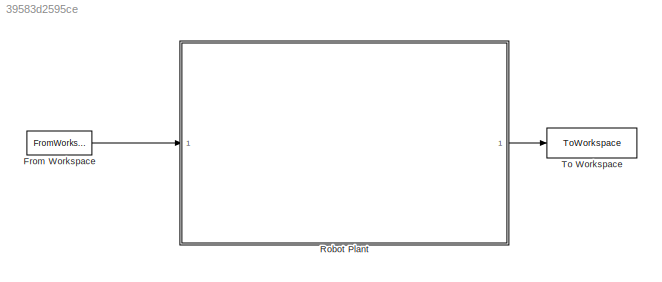
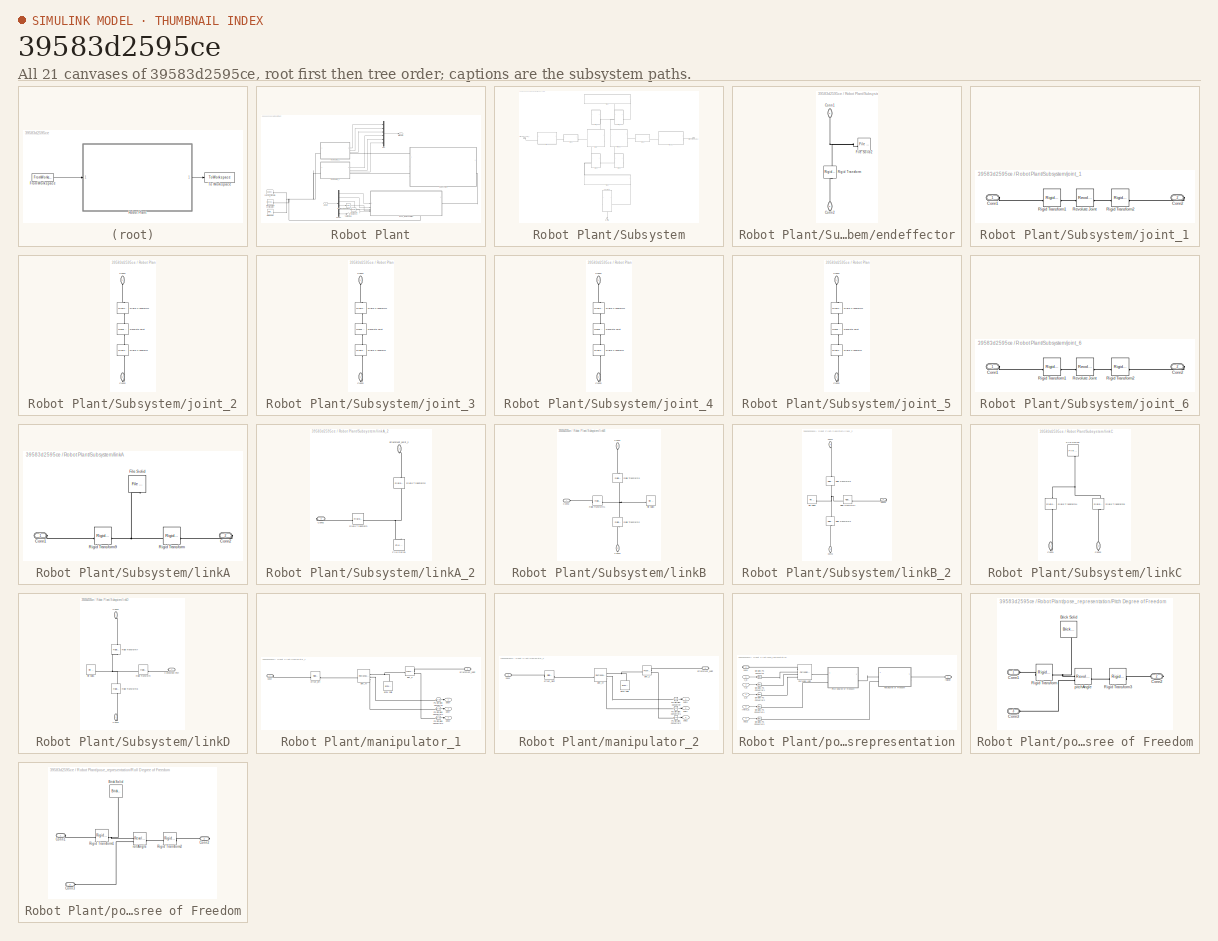
[diagram: thumbnail index - all 21 canvases of the model, root first then tree order]
MODEL slx_39583d2595ce
KIND model
CONFIG FixedStep = 1e-4
CONFIG SolverName = VariableStepAuto
CONFIG StopTime = 10
BLOCK [FromWorkspace] From Workspace
  VariableName = pose
BLOCK [SubSystem] Robot Plant
  TreatAsAtomicUnit = on
BLOCK [Reference] Robot Plant/Degrees to Radians  REF=simulink_extras/Transformations/Degrees to
Radians
  SourceBlock = simulink_extras/Transformations/Degrees to\nRadians
  SourceType = DegreesToRadians
BLOCK [Reference] Robot Plant/Degrees to Radians1  REF=simulink_extras/Transformations/Degrees to
Radians
  SourceBlock = simulink_extras/Transformations/Degrees to\nRadians
  SourceType = DegreesToRadians
BLOCK [Demux] Robot Plant/Demux
  Outputs = 6
BLOCK [Reference] Robot Plant/Mechanism Configuration  REF=sm_lib/Utilities/Mechanism
Configuration
  SourceBlock = sm_lib/Utilities/Mechanism\nConfiguration
  SourceType = Mechanism\nConfiguration
BLOCK [Mux] Robot Plant/Mux
  DisplayOption = bar
  Inputs = 6
BLOCK [Reference] Robot Plant/Solver Configuration  REF=nesl_utility/Solver
Configuration
  SourceBlock = nesl_utility/Solver\nConfiguration
  SourceType = Solver\nConfiguration
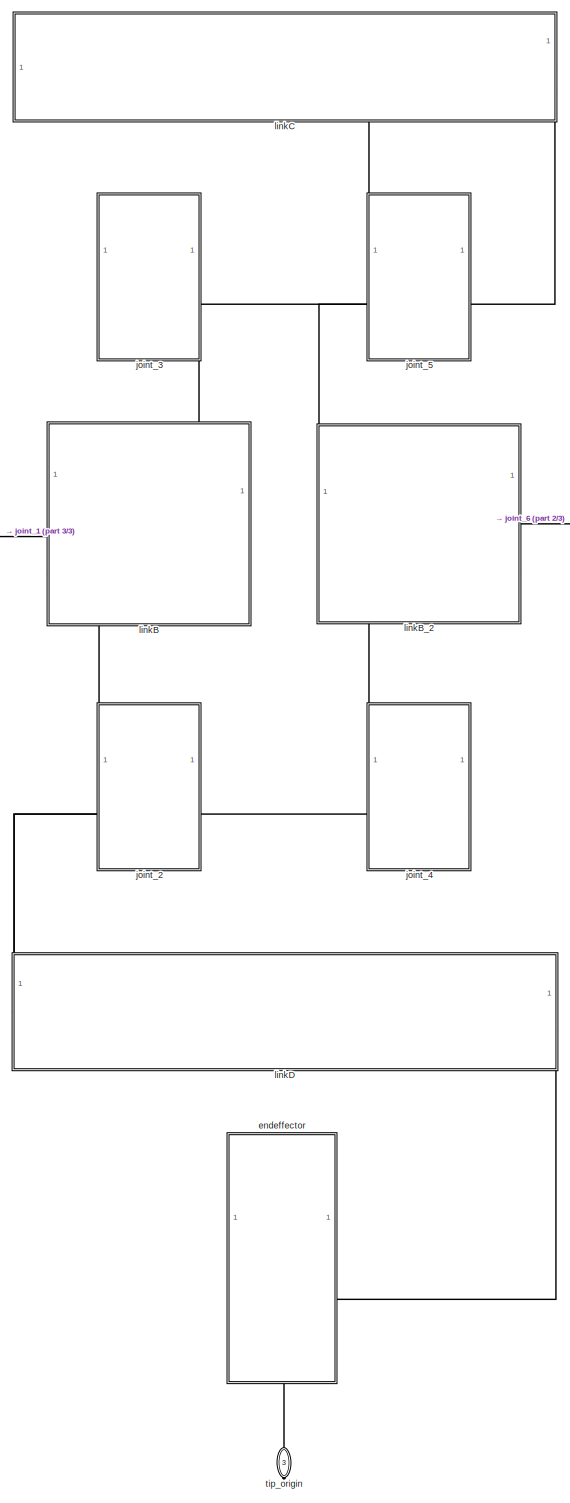
[diagram: Robot Plant/Subsystem - part 1/3, center side, full height]
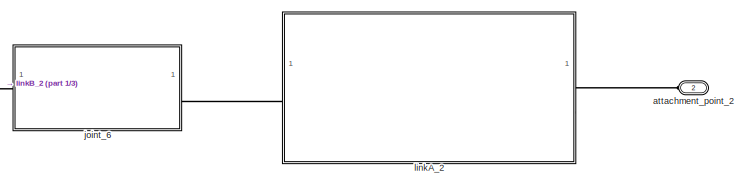
[diagram: Robot Plant/Subsystem - part 2/3, middle right region]
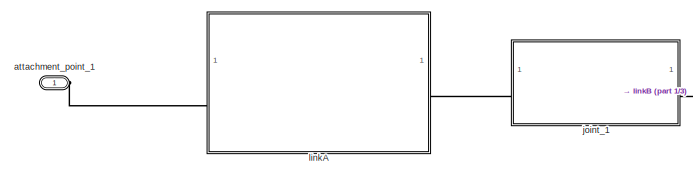
[diagram: Robot Plant/Subsystem - part 3/3, middle left region]
BLOCK [SubSystem] Robot Plant/Subsystem
BLOCK [PMIOPort] Robot Plant/Subsystem/attachment_point_1
  Side = Left
BLOCK [PMIOPort] Robot Plant/Subsystem/attachment_point_2
  NameLocation = top
  Port = 2
  Side = Left
BLOCK [SubSystem] Robot Plant/Subsystem/endeffector
  PortSchema = {"entries":[{"content":{"sides":[{"content":{},"type":"ConnectorPlacement.EquallySpacedRectSide","uuid":"9de1889a-d8f6-4996-99c5-f2a028d35b44"},{"content":{"side":"RIGHT"},"type":"ConnectorPlacement.EquallySpacedRectSide","uuid":"8a8edfff-e1e7-440d-adc1-4cea806c8845"},{"content":{"connectorIds":["LConn1"],"side":"TOP"},"type":"ConnectorPlacement.EquallySpacedRectSide","uuid":"a66a7a7d-93f6-41f0-b4...<+354ch>
BLOCK [PMIOPort] Robot Plant/Subsystem/endeffector/Conn1
  NameLocation = left
  Side = Left
BLOCK [PMIOPort] Robot Plant/Subsystem/endeffector/Conn2
  NameLocation = left
  Port = 2
  Side = Right
BLOCK [Reference] Robot Plant/Subsystem/endeffector/File Solid2  REF=sm_lib/Body Elements/File Solid
  SourceBlock = sm_lib/Body Elements/File Solid
  SourceType = File Solid
BLOCK [Reference] Robot Plant/Subsystem/endeffector/Rigid Transform  REF=sm_lib/Frames and
Transforms/Rigid
Transform
  NameLocation = left
  SourceBlock = sm_lib/Frames and\nTransforms/Rigid\nTransform
  SourceType = Rigid\nTransform
BLOCK [SubSystem] Robot Plant/Subsystem/joint_1
BLOCK [PMIOPort] Robot Plant/Subsystem/joint_1/Conn1
  Side = Left
BLOCK [PMIOPort] Robot Plant/Subsystem/joint_1/Conn2
  Port = 2
  Side = Right
BLOCK [Reference] Robot Plant/Subsystem/joint_1/Revolute Joint  REF=sm_lib/Joints/Revolute Joint
  SourceBlock = sm_lib/Joints/Revolute Joint
  SourceType = Revolute Joint
BLOCK [Reference] Robot Plant/Subsystem/joint_1/Rigid Transform1  REF=sm_lib/Frames and
Transforms/Rigid
Transform
  SourceBlock = sm_lib/Frames and\nTransforms/Rigid\nTransform
  SourceType = Rigid\nTransform
BLOCK [Reference] Robot Plant/Subsystem/joint_1/Rigid Transform2  REF=sm_lib/Frames and
Transforms/Rigid
Transform
  SourceBlock = sm_lib/Frames and\nTransforms/Rigid\nTransform
  SourceType = Rigid\nTransform
BLOCK [SubSystem] Robot Plant/Subsystem/joint_2
  PortSchema = {"entries":[{"content":{"sides":[{"content":{},"type":"ConnectorPlacement.EquallySpacedRectSide","uuid":"7ac89617-0827-49a6-bc82-c9854bd87ba2"},{"content":{"side":"RIGHT"},"type":"ConnectorPlacement.EquallySpacedRectSide","uuid":"8abbba95-1fa4-4603-b9f3-69c7a5fa3e8e"},{"content":{"connectorIds":["LConn1"],"side":"TOP"},"type":"ConnectorPlacement.EquallySpacedRectSide","uuid":"f375a471-7789-4821-97...<+354ch>  <repeated x4 — deduplicated; at blocks: joint_2, joint_3, joint_4, joint_5>
BLOCK [PMIOPort] Robot Plant/Subsystem/joint_2/Conn1
  NameLocation = left
  Side = Left
BLOCK [PMIOPort] Robot Plant/Subsystem/joint_2/Conn2
  NameLocation = right
  Port = 2
  Side = Right
BLOCK [Reference] Robot Plant/Subsystem/joint_2/Revolute Joint  REF=sm_lib/Joints/Revolute Joint
  NameLocation = right
  SourceBlock = sm_lib/Joints/Revolute Joint
  SourceType = Revolute Joint
BLOCK [Reference] Robot Plant/Subsystem/joint_2/Rigid Transform  REF=sm_lib/Frames and
Transforms/Rigid
Transform
  NameLocation = right
  SourceBlock = sm_lib/Frames and\nTransforms/Rigid\nTransform
  SourceType = Rigid\nTransform
BLOCK [Reference] Robot Plant/Subsystem/joint_2/Rigid Transform1  REF=sm_lib/Frames and
Transforms/Rigid
Transform
  NameLocation = left
  SourceBlock = sm_lib/Frames and\nTransforms/Rigid\nTransform
  SourceType = Rigid\nTransform
BLOCK [SubSystem] Robot Plant/Subsystem/joint_3
BLOCK [PMIOPort] Robot Plant/Subsystem/joint_3/Conn1
  NameLocation = left
  Side = Left
BLOCK [PMIOPort] Robot Plant/Subsystem/joint_3/Conn2
  NameLocation = right
  Port = 2
  Side = Right
BLOCK [Reference] Robot Plant/Subsystem/joint_3/Revolute Joint  REF=sm_lib/Joints/Revolute Joint
  NameLocation = right
  SourceBlock = sm_lib/Joints/Revolute Joint
  SourceType = Revolute Joint
BLOCK [Reference] Robot Plant/Subsystem/joint_3/Rigid Transform  REF=sm_lib/Frames and
Transforms/Rigid
Transform
  NameLocation = right
  SourceBlock = sm_lib/Frames and\nTransforms/Rigid\nTransform
  SourceType = Rigid\nTransform
BLOCK [Reference] Robot Plant/Subsystem/joint_3/Rigid Transform1  REF=sm_lib/Frames and
Transforms/Rigid
Transform
  NameLocation = left
  SourceBlock = sm_lib/Frames and\nTransforms/Rigid\nTransform
  SourceType = Rigid\nTransform
BLOCK [SubSystem] Robot Plant/Subsystem/joint_4
BLOCK [PMIOPort] Robot Plant/Subsystem/joint_4/Conn1
  NameLocation = left
  Side = Left
BLOCK [PMIOPort] Robot Plant/Subsystem/joint_4/Conn2
  NameLocation = right
  Port = 2
  Side = Right
BLOCK [Reference] Robot Plant/Subsystem/joint_4/Revolute Joint  REF=sm_lib/Joints/Revolute Joint
  NameLocation = right
  SourceBlock = sm_lib/Joints/Revolute Joint
  SourceType = Revolute Joint
BLOCK [Reference] Robot Plant/Subsystem/joint_4/Rigid Transform  REF=sm_lib/Frames and
Transforms/Rigid
Transform
  NameLocation = right
  SourceBlock = sm_lib/Frames and\nTransforms/Rigid\nTransform
  SourceType = Rigid\nTransform
BLOCK [Reference] Robot Plant/Subsystem/joint_4/Rigid Transform1  REF=sm_lib/Frames and
Transforms/Rigid
Transform
  NameLocation = left
  SourceBlock = sm_lib/Frames and\nTransforms/Rigid\nTransform
  SourceType = Rigid\nTransform
BLOCK [SubSystem] Robot Plant/Subsystem/joint_5
BLOCK [PMIOPort] Robot Plant/Subsystem/joint_5/Conn1
  NameLocation = left
  Side = Left
BLOCK [PMIOPort] Robot Plant/Subsystem/joint_5/Conn2
  NameLocation = right
  Port = 2
  Side = Right
BLOCK [Reference] Robot Plant/Subsystem/joint_5/Revolute Joint  REF=sm_lib/Joints/Revolute Joint
  NameLocation = right
  SourceBlock = sm_lib/Joints/Revolute Joint
  SourceType = Revolute Joint
BLOCK [Reference] Robot Plant/Subsystem/joint_5/Rigid Transform  REF=sm_lib/Frames and
Transforms/Rigid
Transform
  NameLocation = right
  SourceBlock = sm_lib/Frames and\nTransforms/Rigid\nTransform
  SourceType = Rigid\nTransform
BLOCK [Reference] Robot Plant/Subsystem/joint_5/Rigid Transform1  REF=sm_lib/Frames and
Transforms/Rigid
Transform
  NameLocation = left
  SourceBlock = sm_lib/Frames and\nTransforms/Rigid\nTransform
  SourceType = Rigid\nTransform
BLOCK [SubSystem] Robot Plant/Subsystem/joint_6
BLOCK [PMIOPort] Robot Plant/Subsystem/joint_6/Conn1
  Side = Left
BLOCK [PMIOPort] Robot Plant/Subsystem/joint_6/Conn2
  Port = 2
  Side = Right
BLOCK [Reference] Robot Plant/Subsystem/joint_6/Revolute Joint  REF=sm_lib/Joints/Revolute Joint
  SourceBlock = sm_lib/Joints/Revolute Joint
  SourceType = Revolute Joint
BLOCK [Reference] Robot Plant/Subsystem/joint_6/Rigid Transform1  REF=sm_lib/Frames and
Transforms/Rigid
Transform
  SourceBlock = sm_lib/Frames and\nTransforms/Rigid\nTransform
  SourceType = Rigid\nTransform
BLOCK [Reference] Robot Plant/Subsystem/joint_6/Rigid Transform2  REF=sm_lib/Frames and
Transforms/Rigid
Transform
  SourceBlock = sm_lib/Frames and\nTransforms/Rigid\nTransform
  SourceType = Rigid\nTransform
BLOCK [SubSystem] Robot Plant/Subsystem/linkA
BLOCK [PMIOPort] Robot Plant/Subsystem/linkA/Conn1
  Side = Left
BLOCK [PMIOPort] Robot Plant/Subsystem/linkA/Conn2
  Port = 2
  Side = Right
BLOCK [Reference] Robot Plant/Subsystem/linkA/File Solid  REF=sm_lib/Body Elements/File Solid
  NameLocation = right
  SourceBlock = sm_lib/Body Elements/File Solid
  SourceType = File Solid
BLOCK [Reference] Robot Plant/Subsystem/linkA/Rigid Transform  REF=sm_lib/Frames and
Transforms/Rigid
Transform
  SourceBlock = sm_lib/Frames and\nTransforms/Rigid\nTransform
  SourceType = Rigid\nTransform
BLOCK [Reference] Robot Plant/Subsystem/linkA/Rigid Transform9  REF=sm_lib/Frames and
Transforms/Rigid
Transform
  SourceBlock = sm_lib/Frames and\nTransforms/Rigid\nTransform
  SourceType = Rigid\nTransform
BLOCK [SubSystem] Robot Plant/Subsystem/linkA_2
BLOCK [PMIOPort] Robot Plant/Subsystem/linkA_2/Conn2
  Port = 2
  Side = Right
BLOCK [Reference] Robot Plant/Subsystem/linkA_2/File Solid1  REF=sm_lib/Body Elements/File Solid
  NameLocation = left
  SourceBlock = sm_lib/Body Elements/File Solid
  SourceType = File Solid
BLOCK [Reference] Robot Plant/Subsystem/linkA_2/Rigid Transform  REF=sm_lib/Frames and
Transforms/Rigid
Transform
  NameLocation = top
  SourceBlock = sm_lib/Frames and\nTransforms/Rigid\nTransform
  SourceType = Rigid\nTransform
BLOCK [Reference] Robot Plant/Subsystem/linkA_2/Rigid Transform2  REF=sm_lib/Frames and
Transforms/Rigid
Transform
  NameLocation = left
  SourceBlock = sm_lib/Frames and\nTransforms/Rigid\nTransform
  SourceType = Rigid\nTransform
BLOCK [PMIOPort] Robot Plant/Subsystem/linkA_2/attachment_point_2
  NameLocation = left
  Side = Left
BLOCK [SubSystem] Robot Plant/Subsystem/linkB
  PortSchema = {"entries":[{"content":{"sides":[{"content":{"connectorIds":["LConn1"]},"type":"ConnectorPlacement.EquallySpacedRectSide","uuid":"ad560010-601c-4109-ad9b-c40875ad22ec"},{"content":{"side":"RIGHT"},"type":"ConnectorPlacement.EquallySpacedRectSide","uuid":"380dc67c-db39-4e97-b8ce-8039eefb717d"},{"content":{"connectorIds":["LConn2"],"side":"TOP"},"type":"ConnectorPlacement.EquallySpacedRectSide","uui...<+379ch>
BLOCK [PMIOPort] Robot Plant/Subsystem/linkB/Conn1
  NameLocation = right
  Port = 2
  Side = Left
BLOCK [PMIOPort] Robot Plant/Subsystem/linkB/Conn2
  Side = Left
BLOCK [PMIOPort] Robot Plant/Subsystem/linkB/Conn3
  NameLocation = left
  Port = 3
  Side = Right
BLOCK [Reference] Robot Plant/Subsystem/linkB/File Solid3  REF=sm_lib/Body Elements/File Solid
  SourceBlock = sm_lib/Body Elements/File Solid
  SourceType = File Solid
BLOCK [Reference] Robot Plant/Subsystem/linkB/Rigid Transform1  REF=sm_lib/Frames and
Transforms/Rigid
Transform
  SourceBlock = sm_lib/Frames and\nTransforms/Rigid\nTransform
  SourceType = Rigid\nTransform
BLOCK [Reference] Robot Plant/Subsystem/linkB/Rigid Transform2  REF=sm_lib/Frames and
Transforms/Rigid
Transform
  NameLocation = left
  SourceBlock = sm_lib/Frames and\nTransforms/Rigid\nTransform
  SourceType = Rigid\nTransform
BLOCK [Reference] Robot Plant/Subsystem/linkB/Rigid Transform3  REF=sm_lib/Frames and
Transforms/Rigid
Transform
  NameLocation = right
  SourceBlock = sm_lib/Frames and\nTransforms/Rigid\nTransform
  SourceType = Rigid\nTransform
BLOCK [SubSystem] Robot Plant/Subsystem/linkB_2
  PortSchema = {"entries":[{"content":{"sides":[{"content":{},"type":"ConnectorPlacement.EquallySpacedRectSide","uuid":"7330d8d3-43dc-4fcf-bec4-ef645772f38d"},{"content":{"connectorIds":["RConn1"],"side":"RIGHT"},"type":"ConnectorPlacement.EquallySpacedRectSide","uuid":"b5105267-17e8-4fe9-8d2f-f82aac91dbeb"},{"content":{"connectorIds":["LConn1"],"side":"TOP"},"type":"ConnectorPlacement.EquallySpacedRectSide","uu...<+380ch>
BLOCK [PMIOPort] Robot Plant/Subsystem/linkB_2/Conn1
  NameLocation = right
  Side = Left
BLOCK [PMIOPort] Robot Plant/Subsystem/linkB_2/Conn2
  Port = 2
  Side = Right
BLOCK [PMIOPort] Robot Plant/Subsystem/linkB_2/Conn3
  NameLocation = right
  Port = 3
  Side = Right
BLOCK [Reference] Robot Plant/Subsystem/linkB_2/File Solid5  REF=sm_lib/Body Elements/File Solid
  SourceBlock = sm_lib/Body Elements/File Solid
  SourceType = File Solid
BLOCK [Reference] Robot Plant/Subsystem/linkB_2/Rigid Transform1  REF=sm_lib/Frames and
Transforms/Rigid
Transform
  SourceBlock = sm_lib/Frames and\nTransforms/Rigid\nTransform
  SourceType = Rigid\nTransform
BLOCK [Reference] Robot Plant/Subsystem/linkB_2/Rigid Transform3  REF=sm_lib/Frames and
Transforms/Rigid
Transform
  NameLocation = left
  SourceBlock = sm_lib/Frames and\nTransforms/Rigid\nTransform
  SourceType = Rigid\nTransform
BLOCK [Reference] Robot Plant/Subsystem/linkB_2/Rigid Transform6  REF=sm_lib/Frames and
Transforms/Rigid
Transform
  NameLocation = right
  SourceBlock = sm_lib/Frames and\nTransforms/Rigid\nTransform
  SourceType = Rigid\nTransform
BLOCK [SubSystem] Robot Plant/Subsystem/linkC
  PortSchema = {"entries":[{"content":{"sides":[{"content":{},"type":"ConnectorPlacement.EquallySpacedRectSide","uuid":"3cd58c2b-c1e3-4fb3-a9dc-0406e59c1568"},{"content":{"side":"RIGHT"},"type":"ConnectorPlacement.EquallySpacedRectSide","uuid":"fc2602cc-2a91-4563-8ad4-e1fc413fcd0e"},{"content":{"side":"TOP"},"type":"ConnectorPlacement.EquallySpacedRectSide","uuid":"e1f0a915-81c5-4962-997e-076b0eee3b1a"},{"conten...<+337ch>
BLOCK [PMIOPort] Robot Plant/Subsystem/linkC/Conn1
  NameLocation = left
  Side = Right
BLOCK [PMIOPort] Robot Plant/Subsystem/linkC/Conn2
  NameLocation = left
  Port = 2
  Side = Right
BLOCK [Reference] Robot Plant/Subsystem/linkC/File Solid4  REF=sm_lib/Body Elements/File Solid
  NameLocation = right
  SourceBlock = sm_lib/Body Elements/File Solid
  SourceType = File Solid
BLOCK [Reference] Robot Plant/Subsystem/linkC/Rigid Transform4  REF=sm_lib/Frames and
Transforms/Rigid
Transform
  NameLocation = right
  SourceBlock = sm_lib/Frames and\nTransforms/Rigid\nTransform
  SourceType = Rigid\nTransform
BLOCK [Reference] Robot Plant/Subsystem/linkC/Rigid Transform5  REF=sm_lib/Frames and
Transforms/Rigid
Transform
  NameLocation = left
  SourceBlock = sm_lib/Frames and\nTransforms/Rigid\nTransform
  SourceType = Rigid\nTransform
BLOCK [SubSystem] Robot Plant/Subsystem/linkD
  PortSchema = {"entries":[{"content":{"sides":[{"content":{},"type":"ConnectorPlacement.EquallySpacedRectSide","uuid":"3cd58c2b-c1e3-4fb3-a9dc-0406e59c1568"},{"content":{"side":"RIGHT"},"type":"ConnectorPlacement.EquallySpacedRectSide","uuid":"fc2602cc-2a91-4563-8ad4-e1fc413fcd0e"},{"content":{"connectorIds":["LConn1","LConn2"],"side":"TOP"},"type":"ConnectorPlacement.EquallySpacedRectSide","uuid":"e1f0a915-81c...<+363ch>
BLOCK [PMIOPort] Robot Plant/Subsystem/linkD/Conn1
  NameLocation = right
  Side = Left
BLOCK [PMIOPort] Robot Plant/Subsystem/linkD/Conn2
  NameLocation = left
  Port = 3
  Side = Right
BLOCK [PMIOPort] Robot Plant/Subsystem/linkD/Connection Port
  Port = 2
  Side = Left
BLOCK [Reference] Robot Plant/Subsystem/linkD/File Solid6  REF=sm_lib/Body Elements/File Solid
  SourceBlock = sm_lib/Body Elements/File Solid
  SourceType = File Solid
BLOCK [Reference] Robot Plant/Subsystem/linkD/Rigid Transform  REF=sm_lib/Frames and
Transforms/Rigid
Transform
  SourceBlock = sm_lib/Frames and\nTransforms/Rigid\nTransform
  SourceType = Rigid\nTransform
BLOCK [Reference] Robot Plant/Subsystem/linkD/Rigid Transform7  REF=sm_lib/Frames and
Transforms/Rigid
Transform
  NameLocation = left
  SourceBlock = sm_lib/Frames and\nTransforms/Rigid\nTransform
  SourceType = Rigid\nTransform
BLOCK [Reference] Robot Plant/Subsystem/linkD/Rigid Transform8  REF=sm_lib/Frames and
Transforms/Rigid
Transform
  NameLocation = left
  SourceBlock = sm_lib/Frames and\nTransforms/Rigid\nTransform
  SourceType = Rigid\nTransform
BLOCK [PMIOPort] Robot Plant/Subsystem/tip_origin
  NameLocation = right
  Port = 3
  Side = Right
BLOCK [Terminator] Robot Plant/Terminator1
BLOCK [Reference] Robot Plant/World Frame  REF=sm_lib/Frames and
Transforms/World Frame
  SourceBlock = sm_lib/Frames and\nTransforms/World Frame
  SourceType = World Frame
BLOCK [SubSystem] Robot Plant/manipulator_1
BLOCK [Reference] Robot Plant/manipulator_1/Brick Solid  REF=sm_lib/Body Elements/Brick Solid
  NameLocation = right
  SourceBlock = sm_lib/Body Elements/Brick Solid
  SourceType = Brick Solid
BLOCK [Reference] Robot Plant/manipulator_1/PS-Simulink Converter  REF=nesl_utility/PS-Simulink
Converter
  SourceBlock = nesl_utility/PS-Simulink\nConverter
  SourceType = PS-Simulink\nConverter
BLOCK [Reference] Robot Plant/manipulator_1/PS-Simulink Converter1  REF=nesl_utility/PS-Simulink
Converter
  SourceBlock = nesl_utility/PS-Simulink\nConverter
  SourceType = PS-Simulink\nConverter
BLOCK [Reference] Robot Plant/manipulator_1/PS-Simulink Converter2  REF=nesl_utility/PS-Simulink
Converter
  SourceBlock = nesl_utility/PS-Simulink\nConverter
  SourceType = PS-Simulink\nConverter
BLOCK [PMIOPort] Robot Plant/manipulator_1/attachment_point
  Port = 2
  Side = Right
BLOCK [Outport] Robot Plant/manipulator_1/axisX
BLOCK [Outport] Robot Plant/manipulator_1/axisY
  Port = 2
BLOCK [Outport] Robot Plant/manipulator_1/axisZ
  Port = 3
BLOCK [PMIOPort] Robot Plant/manipulator_1/base
  Side = Left
BLOCK [Reference] Robot Plant/manipulator_1/joint_XY  REF=sm_lib/Joints/Rectangular
Joint
  SourceBlock = sm_lib/Joints/Rectangular\nJoint
  SourceType = Rectangular\nJoint
BLOCK [Reference] Robot Plant/manipulator_1/joint_Z  REF=sm_lib/Joints/Prismatic
Joint
  SourceBlock = sm_lib/Joints/Prismatic\nJoint
  SourceType = Prismatic\nJoint
BLOCK [Reference] Robot Plant/manipulator_1/offset_left  REF=sm_lib/Frames and
Transforms/Rigid
Transform
  SourceBlock = sm_lib/Frames and\nTransforms/Rigid\nTransform
  SourceType = Rigid\nTransform
BLOCK [SubSystem] Robot Plant/manipulator_2
BLOCK [Reference] Robot Plant/manipulator_2/Brick Solid  REF=sm_lib/Body Elements/Brick Solid
  NameLocation = right
  SourceBlock = sm_lib/Body Elements/Brick Solid
  SourceType = Brick Solid
BLOCK [Reference] Robot Plant/manipulator_2/PS-Simulink Converter  REF=nesl_utility/PS-Simulink
Converter
  SourceBlock = nesl_utility/PS-Simulink\nConverter
  SourceType = PS-Simulink\nConverter
BLOCK [Reference] Robot Plant/manipulator_2/PS-Simulink Converter1  REF=nesl_utility/PS-Simulink
Converter
  SourceBlock = nesl_utility/PS-Simulink\nConverter
  SourceType = PS-Simulink\nConverter
BLOCK [Reference] Robot Plant/manipulator_2/PS-Simulink Converter2  REF=nesl_utility/PS-Simulink
Converter
  SourceBlock = nesl_utility/PS-Simulink\nConverter
  SourceType = PS-Simulink\nConverter
BLOCK [PMIOPort] Robot Plant/manipulator_2/attachment_point
  Port = 2
  Side = Right
BLOCK [Outport] Robot Plant/manipulator_2/axisX
BLOCK [Outport] Robot Plant/manipulator_2/axisY
  Port = 2
BLOCK [Outport] Robot Plant/manipulator_2/axisZ
  Port = 3
BLOCK [PMIOPort] Robot Plant/manipulator_2/base
  Side = Left
BLOCK [Reference] Robot Plant/manipulator_2/joint_XY  REF=sm_lib/Joints/Rectangular
Joint
  SourceBlock = sm_lib/Joints/Rectangular\nJoint
  SourceType = Rectangular\nJoint
BLOCK [Reference] Robot Plant/manipulator_2/joint_Z  REF=sm_lib/Joints/Prismatic
Joint
  SourceBlock = sm_lib/Joints/Prismatic\nJoint
  SourceType = Prismatic\nJoint
BLOCK [Reference] Robot Plant/manipulator_2/offset_right  REF=sm_lib/Frames and
Transforms/Rigid
Transform
  SourceBlock = sm_lib/Frames and\nTransforms/Rigid\nTransform
  SourceType = Rigid\nTransform
BLOCK [Inport] Robot Plant/pose
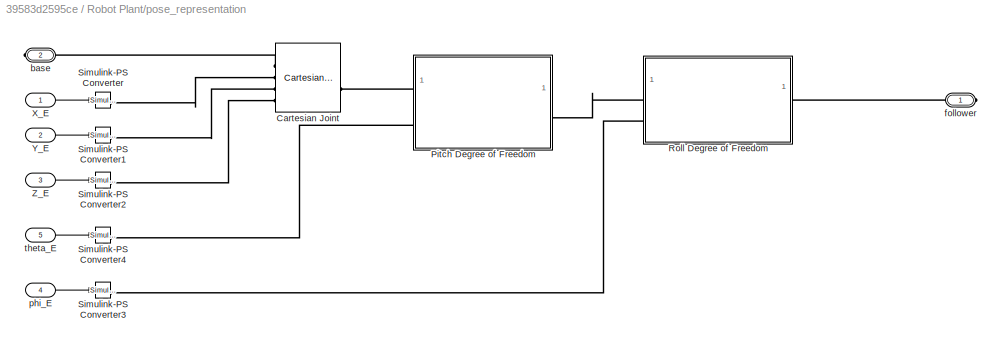
BLOCK [SubSystem] Robot Plant/pose_representation
BLOCK [Reference] Robot Plant/pose_representation/Cartesian Joint  REF=sm_lib/Joints/Cartesian
Joint
  SourceBlock = sm_lib/Joints/Cartesian\nJoint
  SourceType = Cartesian\nJoint
BLOCK [SubSystem] Robot Plant/pose_representation/Pitch Degree of Freedom
BLOCK [Reference] Robot Plant/pose_representation/Pitch Degree of Freedom/Brick Solid  REF=sm_lib/Body Elements/Brick Solid
  NameLocation = left
  SourceBlock = sm_lib/Body Elements/Brick Solid
  SourceType = Brick Solid
BLOCK [PMIOPort] Robot Plant/pose_representation/Pitch Degree of Freedom/Conn1
  Side = Left
BLOCK [PMIOPort] Robot Plant/pose_representation/Pitch Degree of Freedom/Conn2
  Port = 2
  Side = Right
BLOCK [PMIOPort] Robot Plant/pose_representation/Pitch Degree of Freedom/Conn3
  Port = 3
  Side = Left
BLOCK [Reference] Robot Plant/pose_representation/Pitch Degree of Freedom/Rigid Transform  REF=sm_lib/Frames and
Transforms/Rigid
Transform
  SourceBlock = sm_lib/Frames and\nTransforms/Rigid\nTransform
  SourceType = Rigid\nTransform
BLOCK [Reference] Robot Plant/pose_representation/Pitch Degree of Freedom/Rigid Transform3  REF=sm_lib/Frames and
Transforms/Rigid
Transform
  SourceBlock = sm_lib/Frames and\nTransforms/Rigid\nTransform
  SourceType = Rigid\nTransform
BLOCK [Reference] Robot Plant/pose_representation/Pitch Degree of Freedom/pitchAngle  REF=sm_lib/Joints/Revolute Joint
  SourceBlock = sm_lib/Joints/Revolute Joint
  SourceType = Revolute Joint
BLOCK [SubSystem] Robot Plant/pose_representation/Roll Degree of Freedom
BLOCK [Reference] Robot Plant/pose_representation/Roll Degree of Freedom/Brick Solid  REF=sm_lib/Body Elements/Brick Solid
  NameLocation = left
  SourceBlock = sm_lib/Body Elements/Brick Solid
  SourceType = Brick Solid
BLOCK [PMIOPort] Robot Plant/pose_representation/Roll Degree of Freedom/Conn1
  Side = Left
BLOCK [PMIOPort] Robot Plant/pose_representation/Roll Degree of Freedom/Conn2
  Port = 2
  Side = Right
BLOCK [PMIOPort] Robot Plant/pose_representation/Roll Degree of Freedom/Conn3
  Port = 3
  Side = Left
BLOCK [Reference] Robot Plant/pose_representation/Roll Degree of Freedom/Rigid Transform1  REF=sm_lib/Frames and
Transforms/Rigid
Transform
  SourceBlock = sm_lib/Frames and\nTransforms/Rigid\nTransform
  SourceType = Rigid\nTransform
BLOCK [Reference] Robot Plant/pose_representation/Roll Degree of Freedom/Rigid Transform2  REF=sm_lib/Frames and
Transforms/Rigid
Transform
  SourceBlock = sm_lib/Frames and\nTransforms/Rigid\nTransform
  SourceType = Rigid\nTransform
BLOCK [Reference] Robot Plant/pose_representation/Roll Degree of Freedom/rollAngle  REF=sm_lib/Joints/Revolute Joint
  SourceBlock = sm_lib/Joints/Revolute Joint
  SourceType = Revolute Joint
BLOCK [Reference] Robot Plant/pose_representation/Simulink-PS Converter  REF=nesl_utility/Simulink-PS
Converter
  SourceBlock = nesl_utility/Simulink-PS\nConverter
  SourceType = Simulink-PS\nConverter
BLOCK [Reference] Robot Plant/pose_representation/Simulink-PS Converter1  REF=nesl_utility/Simulink-PS
Converter
  SourceBlock = nesl_utility/Simulink-PS\nConverter
  SourceType = Simulink-PS\nConverter
BLOCK [Reference] Robot Plant/pose_representation/Simulink-PS Converter2  REF=nesl_utility/Simulink-PS
Converter
  SourceBlock = nesl_utility/Simulink-PS\nConverter
  SourceType = Simulink-PS\nConverter
BLOCK [Reference] Robot Plant/pose_representation/Simulink-PS Converter3  REF=nesl_utility/Simulink-PS
Converter
  SourceBlock = nesl_utility/Simulink-PS\nConverter
  SourceType = Simulink-PS\nConverter
BLOCK [Reference] Robot Plant/pose_representation/Simulink-PS Converter4  REF=nesl_utility/Simulink-PS
Converter
  SourceBlock = nesl_utility/Simulink-PS\nConverter
  SourceType = Simulink-PS\nConverter
BLOCK [Inport] Robot Plant/pose_representation/X_E
BLOCK [Inport] Robot Plant/pose_representation/Y_E
  Port = 2
BLOCK [Inport] Robot Plant/pose_representation/Z_E
  Port = 3
BLOCK [PMIOPort] Robot Plant/pose_representation/base
  Port = 2
  Side = Right
BLOCK [PMIOPort] Robot Plant/pose_representation/follower
  Side = Right
BLOCK [Inport] Robot Plant/pose_representation/phi_E
  Port = 4
BLOCK [Inport] Robot Plant/pose_representation/theta_E
  Port = 5
BLOCK [Outport] Robot Plant/trajectory
BLOCK [ToWorkspace] To Workspace
  FixptAsFi = on
  MaxDataPoints = inf
  SampleTime = -1
  SaveFormat = Timeseries
  VariableName = q
LINE From Workspace:1 -> Robot Plant:1
LINE Robot Plant/Degrees to Radians1:1 -> Robot Plant/pose_representation:5
LINE Robot Plant/Degrees to Radians:1 -> Robot Plant/pose_representation:4
LINE Robot Plant/Demux:1 -> Robot Plant/pose_representation:1
LINE Robot Plant/Demux:2 -> Robot Plant/pose_representation:2
LINE Robot Plant/Demux:3 -> Robot Plant/pose_representation:3
LINE Robot Plant/Demux:4 -> Robot Plant/Degrees to Radians:1
LINE Robot Plant/Demux:5 -> Robot Plant/Degrees to Radians1:1
LINE Robot Plant/Demux:6 -> Robot Plant/Terminator1:1
LINE Robot Plant/Mux:1 -> Robot Plant/trajectory:1
LINE Robot Plant/manipulator_1/PS-Simulink Converter1:1 -> Robot Plant/manipulator_1/axisY:1
LINE Robot Plant/manipulator_1/PS-Simulink Converter2:1 -> Robot Plant/manipulator_1/axisZ:1
LINE Robot Plant/manipulator_1/PS-Simulink Converter:1 -> Robot Plant/manipulator_1/axisX:1
LINE Robot Plant/manipulator_1:1 -> Robot Plant/Mux:1
LINE Robot Plant/manipulator_1:2 -> Robot Plant/Mux:2
LINE Robot Plant/manipulator_1:3 -> Robot Plant/Mux:3
LINE Robot Plant/manipulator_2/PS-Simulink Converter1:1 -> Robot Plant/manipulator_2/axisY:1
LINE Robot Plant/manipulator_2/PS-Simulink Converter2:1 -> Robot Plant/manipulator_2/axisZ:1
LINE Robot Plant/manipulator_2/PS-Simulink Converter:1 -> Robot Plant/manipulator_2/axisX:1
LINE Robot Plant/manipulator_2:1 -> Robot Plant/Mux:4
LINE Robot Plant/manipulator_2:2 -> Robot Plant/Mux:5
LINE Robot Plant/manipulator_2:3 -> Robot Plant/Mux:6
LINE Robot Plant/pose:1 -> Robot Plant/Demux:1
LINE Robot Plant/pose_representation/X_E:1 -> Robot Plant/pose_representation/Simulink-PS Converter:1
LINE Robot Plant/pose_representation/Y_E:1 -> Robot Plant/pose_representation/Simulink-PS Converter1:1
LINE Robot Plant/pose_representation/Z_E:1 -> Robot Plant/pose_representation/Simulink-PS Converter2:1
LINE Robot Plant/pose_representation/phi_E:1 -> Robot Plant/pose_representation/Simulink-PS Converter3:1
LINE Robot Plant/pose_representation/theta_E:1 -> Robot Plant/pose_representation/Simulink-PS Converter4:1
LINE Robot Plant:1 -> To Workspace:1
PNET net1: Robot Plant/Mechanism Configuration:RConn1 -- Robot Plant/Solver Configuration:RConn1 -- Robot Plant/World Frame:RConn1 -- Robot Plant/manipulator_1:LConn1 -- Robot Plant/manipulator_2:LConn1 -- Robot Plant/pose_representation:RConn2
PLINE Robot Plant/Subsystem/attachment_point_1:RConn1 -- Robot Plant/Subsystem/linkA:LConn1
PLINE Robot Plant/Subsystem/attachment_point_2:RConn1 -- Robot Plant/Subsystem/linkA_2:LConn1
PNET net2: Robot Plant/Subsystem/endeffector/Conn1:RConn1 -- Robot Plant/Subsystem/endeffector/File Solid2:LConn1 -- Robot Plant/Subsystem/endeffector/Rigid Transform:LConn1
PLINE Robot Plant/Subsystem/endeffector/Conn2:RConn1 -- Robot Plant/Subsystem/endeffector/Rigid Transform:RConn1
PLINE Robot Plant/Subsystem/endeffector:LConn1 -- Robot Plant/Subsystem/linkD:RConn1
PLINE Robot Plant/Subsystem/endeffector:RConn1 -- Robot Plant/Subsystem/tip_origin:RConn1
PLINE Robot Plant/Subsystem/joint_1/Conn1:RConn1 -- Robot Plant/Subsystem/joint_1/Rigid Transform1:LConn1
PLINE Robot Plant/Subsystem/joint_1/Conn2:RConn1 -- Robot Plant/Subsystem/joint_1/Rigid Transform2:LConn1
PLINE Robot Plant/Subsystem/joint_1/Revolute Joint:LConn1 -- Robot Plant/Subsystem/joint_1/Rigid Transform1:RConn1
PLINE Robot Plant/Subsystem/joint_1/Revolute Joint:RConn1 -- Robot Plant/Subsystem/joint_1/Rigid Transform2:RConn1
PLINE Robot Plant/Subsystem/joint_1:LConn1 -- Robot Plant/Subsystem/linkA:RConn1
PLINE Robot Plant/Subsystem/joint_1:RConn1 -- Robot Plant/Subsystem/linkB:LConn1
PLINE Robot Plant/Subsystem/joint_2/Conn1:RConn1 -- Robot Plant/Subsystem/joint_2/Rigid Transform1:LConn1
PLINE Robot Plant/Subsystem/joint_2/Conn2:RConn1 -- Robot Plant/Subsystem/joint_2/Rigid Transform:LConn1
PLINE Robot Plant/Subsystem/joint_2/Revolute Joint:LConn1 -- Robot Plant/Subsystem/joint_2/Rigid Transform:RConn1
PLINE Robot Plant/Subsystem/joint_2/Revolute Joint:RConn1 -- Robot Plant/Subsystem/joint_2/Rigid Transform1:RConn1
PLINE Robot Plant/Subsystem/joint_2:LConn1 -- Robot Plant/Subsystem/linkB:RConn1
PLINE Robot Plant/Subsystem/joint_2:RConn1 -- Robot Plant/Subsystem/linkD:LConn1
PLINE Robot Plant/Subsystem/joint_3/Conn1:RConn1 -- Robot Plant/Subsystem/joint_3/Rigid Transform1:LConn1
PLINE Robot Plant/Subsystem/joint_3/Conn2:RConn1 -- Robot Plant/Subsystem/joint_3/Rigid Transform:LConn1
PLINE Robot Plant/Subsystem/joint_3/Revolute Joint:LConn1 -- Robot Plant/Subsystem/joint_3/Rigid Transform:RConn1
PLINE Robot Plant/Subsystem/joint_3/Revolute Joint:RConn1 -- Robot Plant/Subsystem/joint_3/Rigid Transform1:RConn1
PLINE Robot Plant/Subsystem/joint_3:LConn1 -- Robot Plant/Subsystem/linkC:RConn1
PLINE Robot Plant/Subsystem/joint_3:RConn1 -- Robot Plant/Subsystem/linkB:LConn2
PLINE Robot Plant/Subsystem/joint_4/Conn1:RConn1 -- Robot Plant/Subsystem/joint_4/Rigid Transform1:LConn1
PLINE Robot Plant/Subsystem/joint_4/Conn2:RConn1 -- Robot Plant/Subsystem/joint_4/Rigid Transform:LConn1
PLINE Robot Plant/Subsystem/joint_4/Revolute Joint:LConn1 -- Robot Plant/Subsystem/joint_4/Rigid Transform:RConn1
PLINE Robot Plant/Subsystem/joint_4/Revolute Joint:RConn1 -- Robot Plant/Subsystem/joint_4/Rigid Transform1:RConn1
PLINE Robot Plant/Subsystem/joint_4:LConn1 -- Robot Plant/Subsystem/linkB_2:RConn2
PLINE Robot Plant/Subsystem/joint_4:RConn1 -- Robot Plant/Subsystem/linkD:LConn2
PLINE Robot Plant/Subsystem/joint_5/Conn1:RConn1 -- Robot Plant/Subsystem/joint_5/Rigid Transform1:LConn1
PLINE Robot Plant/Subsystem/joint_5/Conn2:RConn1 -- Robot Plant/Subsystem/joint_5/Rigid Transform:LConn1
PLINE Robot Plant/Subsystem/joint_5/Revolute Joint:LConn1 -- Robot Plant/Subsystem/joint_5/Rigid Transform:RConn1
PLINE Robot Plant/Subsystem/joint_5/Revolute Joint:RConn1 -- Robot Plant/Subsystem/joint_5/Rigid Transform1:RConn1
PLINE Robot Plant/Subsystem/joint_5:LConn1 -- Robot Plant/Subsystem/linkC:RConn2
PLINE Robot Plant/Subsystem/joint_5:RConn1 -- Robot Plant/Subsystem/linkB_2:LConn1
PLINE Robot Plant/Subsystem/joint_6/Conn1:RConn1 -- Robot Plant/Subsystem/joint_6/Rigid Transform1:LConn1
PLINE Robot Plant/Subsystem/joint_6/Conn2:RConn1 -- Robot Plant/Subsystem/joint_6/Rigid Transform2:LConn1
PLINE Robot Plant/Subsystem/joint_6/Revolute Joint:LConn1 -- Robot Plant/Subsystem/joint_6/Rigid Transform1:RConn1
PLINE Robot Plant/Subsystem/joint_6/Revolute Joint:RConn1 -- Robot Plant/Subsystem/joint_6/Rigid Transform2:RConn1
PLINE Robot Plant/Subsystem/joint_6:LConn1 -- Robot Plant/Subsystem/linkB_2:RConn1
PLINE Robot Plant/Subsystem/joint_6:RConn1 -- Robot Plant/Subsystem/linkA_2:RConn1
PLINE Robot Plant/Subsystem/linkA/Conn1:RConn1 -- Robot Plant/Subsystem/linkA/Rigid Transform9:RConn1
PLINE Robot Plant/Subsystem/linkA/Conn2:RConn1 -- Robot Plant/Subsystem/linkA/Rigid Transform:RConn1
PNET net3: Robot Plant/Subsystem/linkA/File Solid:LConn1 -- Robot Plant/Subsystem/linkA/Rigid Transform9:LConn1 -- Robot Plant/Subsystem/linkA/Rigid Transform:LConn1
PLINE Robot Plant/Subsystem/linkA_2/Conn2:RConn1 -- Robot Plant/Subsystem/linkA_2/Rigid Transform:RConn1
PNET net4: Robot Plant/Subsystem/linkA_2/File Solid1:LConn1 -- Robot Plant/Subsystem/linkA_2/Rigid Transform2:LConn1 -- Robot Plant/Subsystem/linkA_2/Rigid Transform:LConn1
PLINE Robot Plant/Subsystem/linkA_2/Rigid Transform2:RConn1 -- Robot Plant/Subsystem/linkA_2/attachment_point_2:RConn1
PLINE Robot Plant/Subsystem/linkB/Conn1:RConn1 -- Robot Plant/Subsystem/linkB/Rigid Transform3:RConn1
PLINE Robot Plant/Subsystem/linkB/Conn2:RConn1 -- Robot Plant/Subsystem/linkB/Rigid Transform1:RConn1
PLINE Robot Plant/Subsystem/linkB/Conn3:RConn1 -- Robot Plant/Subsystem/linkB/Rigid Transform2:RConn1
PNET net5: Robot Plant/Subsystem/linkB/File Solid3:LConn1 -- Robot Plant/Subsystem/linkB/Rigid Transform1:LConn1 -- Robot Plant/Subsystem/linkB/Rigid Transform2:LConn1 -- Robot Plant/Subsystem/linkB/Rigid Transform3:LConn1
PLINE Robot Plant/Subsystem/linkB_2/Conn1:RConn1 -- Robot Plant/Subsystem/linkB_2/Rigid Transform6:RConn1
PLINE Robot Plant/Subsystem/linkB_2/Conn2:RConn1 -- Robot Plant/Subsystem/linkB_2/Rigid Transform1:RConn1
PLINE Robot Plant/Subsystem/linkB_2/Conn3:RConn1 -- Robot Plant/Subsystem/linkB_2/Rigid Transform3:RConn1
PNET net6: Robot Plant/Subsystem/linkB_2/File Solid5:LConn1 -- Robot Plant/Subsystem/linkB_2/Rigid Transform1:LConn1 -- Robot Plant/Subsystem/linkB_2/Rigid Transform3:LConn1 -- Robot Plant/Subsystem/linkB_2/Rigid Transform6:LConn1
PLINE Robot Plant/Subsystem/linkC/Conn1:RConn1 -- Robot Plant/Subsystem/linkC/Rigid Transform4:RConn1
PLINE Robot Plant/Subsystem/linkC/Conn2:RConn1 -- Robot Plant/Subsystem/linkC/Rigid Transform5:RConn1
PNET net7: Robot Plant/Subsystem/linkC/File Solid4:LConn1 -- Robot Plant/Subsystem/linkC/Rigid Transform4:LConn1 -- Robot Plant/Subsystem/linkC/Rigid Transform5:LConn1
PLINE Robot Plant/Subsystem/linkD/Conn1:RConn1 -- Robot Plant/Subsystem/linkD/Rigid Transform7:RConn1
PLINE Robot Plant/Subsystem/linkD/Conn2:RConn1 -- Robot Plant/Subsystem/linkD/Rigid Transform8:RConn1
PLINE Robot Plant/Subsystem/linkD/Connection Port:RConn1 -- Robot Plant/Subsystem/linkD/Rigid Transform:RConn1
PNET net8: Robot Plant/Subsystem/linkD/File Solid6:LConn1 -- Robot Plant/Subsystem/linkD/Rigid Transform7:LConn1 -- Robot Plant/Subsystem/linkD/Rigid Transform8:LConn1 -- Robot Plant/Subsystem/linkD/Rigid Transform:LConn1
PLINE Robot Plant/Subsystem:LConn1 -- Robot Plant/manipulator_1:RConn1
PLINE Robot Plant/Subsystem:LConn2 -- Robot Plant/manipulator_2:RConn1
PLINE Robot Plant/Subsystem:RConn1 -- Robot Plant/pose_representation:RConn1
PNET net9: Robot Plant/manipulator_1/Brick Solid:RConn1 -- Robot Plant/manipulator_1/joint_XY:RConn1 -- Robot Plant/manipulator_1/joint_Z:LConn1
PLINE Robot Plant/manipulator_1/PS-Simulink Converter1:LConn1 -- Robot Plant/manipulator_1/joint_XY:RConn3
PLINE Robot Plant/manipulator_1/PS-Simulink Converter2:LConn1 -- Robot Plant/manipulator_1/joint_Z:RConn2
PLINE Robot Plant/manipulator_1/PS-Simulink Converter:LConn1 -- Robot Plant/manipulator_1/joint_XY:RConn2
PLINE Robot Plant/manipulator_1/attachment_point:RConn1 -- Robot Plant/manipulator_1/joint_Z:RConn1
PLINE Robot Plant/manipulator_1/base:RConn1 -- Robot Plant/manipulator_1/offset_left:LConn1
PLINE Robot Plant/manipulator_1/joint_XY:LConn1 -- Robot Plant/manipulator_1/offset_left:RConn1
PNET net10: Robot Plant/manipulator_2/Brick Solid:RConn1 -- Robot Plant/manipulator_2/joint_XY:RConn1 -- Robot Plant/manipulator_2/joint_Z:LConn1
PLINE Robot Plant/manipulator_2/PS-Simulink Converter1:LConn1 -- Robot Plant/manipulator_2/joint_XY:RConn3
PLINE Robot Plant/manipulator_2/PS-Simulink Converter2:LConn1 -- Robot Plant/manipulator_2/joint_Z:RConn2
PLINE Robot Plant/manipulator_2/PS-Simulink Converter:LConn1 -- Robot Plant/manipulator_2/joint_XY:RConn2
PLINE Robot Plant/manipulator_2/attachment_point:RConn1 -- Robot Plant/manipulator_2/joint_Z:RConn1
PLINE Robot Plant/manipulator_2/base:RConn1 -- Robot Plant/manipulator_2/offset_right:LConn1
PLINE Robot Plant/manipulator_2/joint_XY:LConn1 -- Robot Plant/manipulator_2/offset_right:RConn1
PLINE Robot Plant/pose_representation/Cartesian Joint:LConn1 -- Robot Plant/pose_representation/base:RConn1
PLINE Robot Plant/pose_representation/Cartesian Joint:LConn2 -- Robot Plant/pose_representation/Simulink-PS Converter:RConn1
PLINE Robot Plant/pose_representation/Cartesian Joint:LConn3 -- Robot Plant/pose_representation/Simulink-PS Converter1:RConn1
PLINE Robot Plant/pose_representation/Cartesian Joint:LConn4 -- Robot Plant/pose_representation/Simulink-PS Converter2:RConn1
PLINE Robot Plant/pose_representation/Cartesian Joint:RConn1 -- Robot Plant/pose_representation/Pitch Degree of Freedom:LConn1
PNET net11: Robot Plant/pose_representation/Pitch Degree of Freedom/Brick Solid:RConn1 -- Robot Plant/pose_representation/Pitch Degree of Freedom/Rigid Transform:RConn1 -- Robot Plant/pose_representation/Pitch Degree of Freedom/pitchAngle:LConn1
PLINE Robot Plant/pose_representation/Pitch Degree of Freedom/Conn1:RConn1 -- Robot Plant/pose_representation/Pitch Degree of Freedom/Rigid Transform:LConn1
PLINE Robot Plant/pose_representation/Pitch Degree of Freedom/Conn2:RConn1 -- Robot Plant/pose_representation/Pitch Degree of Freedom/Rigid Transform3:LConn1
PLINE Robot Plant/pose_representation/Pitch Degree of Freedom/Conn3:RConn1 -- Robot Plant/pose_representation/Pitch Degree of Freedom/pitchAngle:LConn2
PLINE Robot Plant/pose_representation/Pitch Degree of Freedom/Rigid Transform3:RConn1 -- Robot Plant/pose_representation/Pitch Degree of Freedom/pitchAngle:RConn1
PLINE Robot Plant/pose_representation/Pitch Degree of Freedom:LConn2 -- Robot Plant/pose_representation/Simulink-PS Converter4:RConn1
PLINE Robot Plant/pose_representation/Pitch Degree of Freedom:RConn1 -- Robot Plant/pose_representation/Roll Degree of Freedom:LConn1
PNET net12: Robot Plant/pose_representation/Roll Degree of Freedom/Brick Solid:RConn1 -- Robot Plant/pose_representation/Roll Degree of Freedom/Rigid Transform1:RConn1 -- Robot Plant/pose_representation/Roll Degree of Freedom/rollAngle:LConn1
PLINE Robot Plant/pose_representation/Roll Degree of Freedom/Conn1:RConn1 -- Robot Plant/pose_representation/Roll Degree of Freedom/Rigid Transform1:LConn1
PLINE Robot Plant/pose_representation/Roll Degree of Freedom/Conn2:RConn1 -- Robot Plant/pose_representation/Roll Degree of Freedom/Rigid Transform2:RConn1
PLINE Robot Plant/pose_representation/Roll Degree of Freedom/Conn3:RConn1 -- Robot Plant/pose_representation/Roll Degree of Freedom/rollAngle:LConn2
PLINE Robot Plant/pose_representation/Roll Degree of Freedom/Rigid Transform2:LConn1 -- Robot Plant/pose_representation/Roll Degree of Freedom/rollAngle:RConn1
PLINE Robot Plant/pose_representation/Roll Degree of Freedom:LConn2 -- Robot Plant/pose_representation/Simulink-PS Converter3:RConn1
PLINE Robot Plant/pose_representation/Roll Degree of Freedom:RConn1 -- Robot Plant/pose_representation/follower:RConn1
note: PNET lines group multi-terminal physical nets as a canonical sorted terminal list (undirected conserving connections); 2-terminal nets keep the pairwise PLINE form
